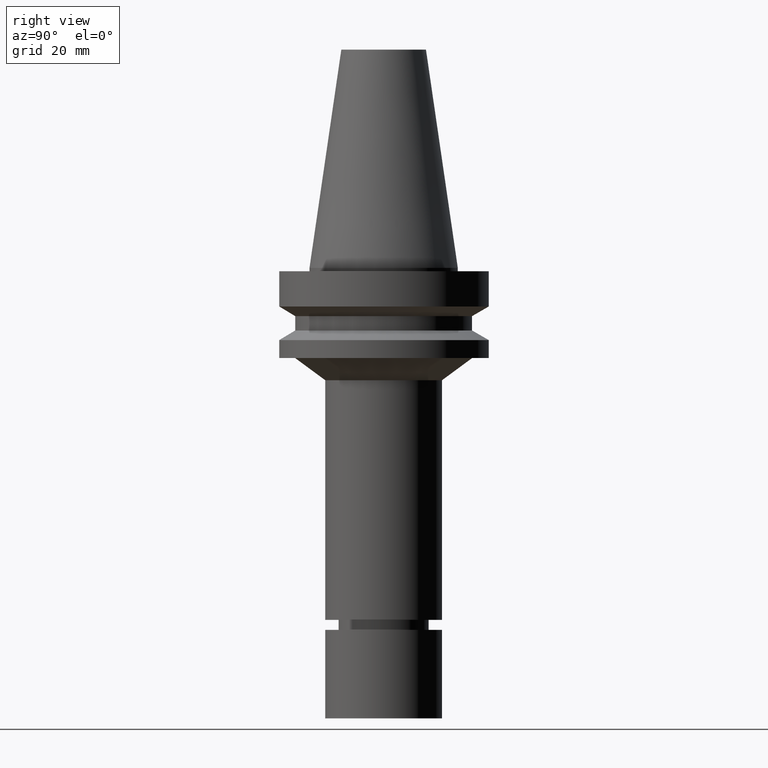
[diagram: clean part render]
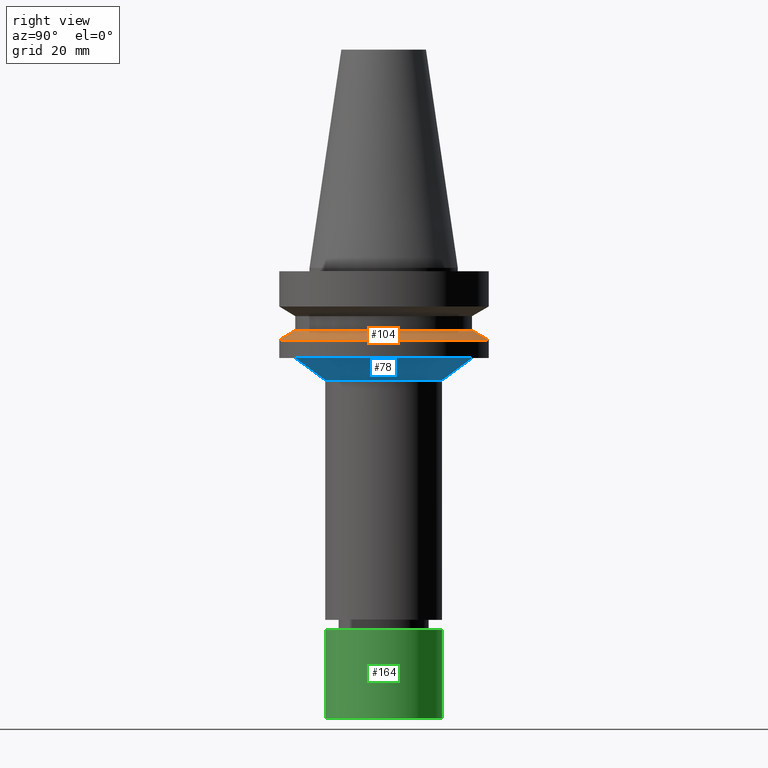
[diagram: same view with three faces highlighted in distinct colors, each labeled with its STEP entity id]
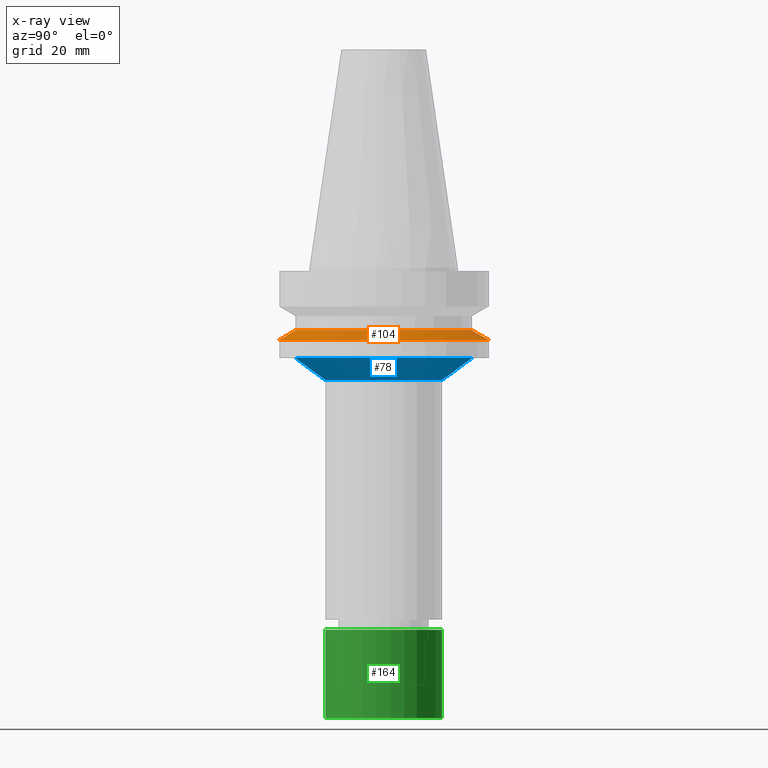
[diagram: x-ray of the same camera — body ghosted, the three highlighted faces saturated]
A machine part, right view with three faces highlighted in distinct colors.
The next image is the same camera in x-ray (body ghosted, the three faces saturated) — at least one of them is partly hidden behind the body in this view.
Their STEP definitions:

[orange] entity #104 — the highlighted conical surface has half-angle 60 deg.
#104=ADVANCED_FACE('Unnamed[1]',(#245,#246),#247,.T.);
#169=EDGE_CURVE('Unnamed[1]',#347,#347,#348,.T.);
#177=EDGE_CURVE('Unnamed[1]',#357,#357,#358,.T.);
#245=FACE_BOUND('',#433,.T.);
#246=FACE_BOUND('',#434,.T.);
#247=CONICAL_SURFACE('',#435,29.0000000000003,1.04719755119651);
#347=VERTEX_POINT('',#559);
#348=CIRCLE('',#560,31.5000000000006);
#357=VERTEX_POINT('',#571);
#358=CIRCLE('',#572,26.5);
#433=EDGE_LOOP('',(#628));
#434=EDGE_LOOP('',(#629));
#435=AXIS2_PLACEMENT_3D('',#630,#631,#632);
#559=CARTESIAN_POINT('',(1.32473071268174E-015,31.5000000000007,-21.6344943473346));
#560=AXIS2_PLACEMENT_3D('',#743,#744,#745);
#571=CARTESIAN_POINT('',(1.1479681728942E-015,26.5,-18.7477430013855));
#572=AXIS2_PLACEMENT_3D('',#752,#753,#754);
#628=ORIENTED_EDGE('',*,*,#169,.F.);
#629=ORIENTED_EDGE('',*,*,#177,.T.);
#630=CARTESIAN_POINT('',(1.23634944278797E-015,6.90457458032624E-014,-20.1911186743601));
#631=DIRECTION('',(6.12323399573677E-017,-9.38040710727787E-017,-1.0));
#632=DIRECTION('',(9.16690038549514E-034,1.0,-9.38040710727787E-017));
#743=CARTESIAN_POINT('',(1.32473071268174E-015,6.891035128905E-014,-21.6344943473346));
#744=DIRECTION('',(6.12323399573677E-017,-9.38040710726646E-017,-1.0));
#745=DIRECTION('',(9.16690038539098E-034,1.0,-9.38040710726646E-017));
#752=CARTESIAN_POINT('',(1.1479681728942E-015,6.91811403174748E-014,-18.7477430013855));
#753=DIRECTION('',(6.12323399573677E-017,-9.38040710727925E-017,-1.0));
#754=DIRECTION('',(9.16690038548358E-034,1.0,-9.38040710727925E-017));

[blue] entity #78 — the highlighted conical surface has half-angle 53.615 deg.
#78=ADVANCED_FACE('Unnamed[1]',(#205,#206),#207,.T.);
#92=EDGE_CURVE('Unnamed[1]',#227,#227,#228,.T.);
#99=EDGE_CURVE('Unnamed[1]',#238,#238,#239,.T.);
#205=FACE_BOUND('',#382,.T.);
#206=FACE_BOUND('',#383,.T.);
#207=CONICAL_SURFACE('',#384,22.0222908518337,0.935754396976015);
#227=VERTEX_POINT('',#410);
#228=CIRCLE('',#411,17.5000000000009);
#238=VERTEX_POINT('',#424);
#239=CIRCLE('',#425,26.5445817036666);
#382=EDGE_LOOP('',(#584));
#383=EDGE_LOOP('',(#585));
#384=AXIS2_PLACEMENT_3D('',#586,#587,#588);
#410=CARTESIAN_POINT('',(2.0613647219023E-015,17.5000000000009,-33.6646406676194));
#411=AXIS2_PLACEMENT_3D('',#609,#610,#611);
#424=CARTESIAN_POINT('',(1.65327317884891E-015,26.5445817036666,-26.9999999999998));
#425=AXIS2_PLACEMENT_3D('',#621,#622,#623);
#584=ORIENTED_EDGE('',*,*,#92,.F.);
#585=ORIENTED_EDGE('',*,*,#99,.T.);
#586=CARTESIAN_POINT('',(1.85731895037561E-015,6.80944598020363E-014,-30.3323203338096));
#587=DIRECTION('',(-6.12323399573677E-017,9.38040710727308E-017,1.0));
#588=DIRECTION('',(9.16690038537496E-034,1.0,-9.38040710727308E-017));
#609=CARTESIAN_POINT('',(2.0613647219023E-015,6.77818745886064E-014,-33.6646406676194));
#610=DIRECTION('',(6.12323399573677E-017,-9.3804071072826E-017,-1.0));
#611=DIRECTION('',(9.16690038551599E-034,1.0,-9.3804071072826E-017));
#621=CARTESIAN_POINT('',(1.65327317884891E-015,6.84070450154662E-014,-26.9999999999998));
#622=DIRECTION('',(6.12323399573677E-017,-9.38040710727897E-017,-1.0));
#623=DIRECTION('',(9.16690038548471E-034,1.0,-9.38040710727897E-017));

[green] entity #164 — the highlighted cylindrical surface (bore or boss wall) has radius 17.5 mm, axis along (0, -0, -1).
#148=EDGE_CURVE('Unnamed[1]',#315,#315,#316,.T.);
#159=EDGE_CURVE('Unnamed[1]',#331,#331,#332,.T.);
#164=ADVANCED_FACE('Unnamed[1]',(#338,#339),#340,.T.);
#315=VERTEX_POINT('',#520);
#316=CIRCLE('',#521,17.5);
#331=VERTEX_POINT('',#539);
#332=CIRCLE('',#540,17.5);
#338=FACE_BOUND('',#548,.T.);
#339=FACE_BOUND('',#549,.T.);
#340=CYLINDRICAL_SURFACE('',#550,17.5);
#520=CARTESIAN_POINT('',(6.64370981970575E-015,17.5,-108.500015258789));
#521=AXIS2_PLACEMENT_3D('',#709,#710,#711);
#539=CARTESIAN_POINT('',(8.26636589424463E-015,17.5,-135.0));
#540=AXIS2_PLACEMENT_3D('',#725,#726,#727);
#548=EDGE_LOOP('',(#732));
#549=EDGE_LOOP('',(#733));
#550=AXIS2_PLACEMENT_3D('',#734,#735,#736);
#709=CARTESIAN_POINT('',(6.64370981970575E-015,6.07620117917E-014,-108.500015258789));
#710=DIRECTION('',(6.12323399573677E-017,-9.38040710727558E-017,-1.0));
#711=DIRECTION('',(9.16690038543038E-034,1.0,-9.38040710727558E-017));
#725=CARTESIAN_POINT('',(8.26636589424463E-015,5.82762053396085E-014,-135.0));
#726=DIRECTION('',(6.12323399573676E-017,-9.38040710727558E-017,-1.0));
#727=DIRECTION('',(9.16690038543041E-034,1.0,-9.38040710727558E-017));
#732=ORIENTED_EDGE('',*,*,#159,.F.);
#733=ORIENTED_EDGE('',*,*,#148,.T.);
#734=CARTESIAN_POINT('',(7.45503785697519E-015,5.95191085656543E-014,-121.750007629394));
#735=DIRECTION('',(6.12323399573677E-017,-9.38040710727558E-017,-1.0));
#736=DIRECTION('',(9.16690038543038E-034,1.0,-9.38040710727558E-017));